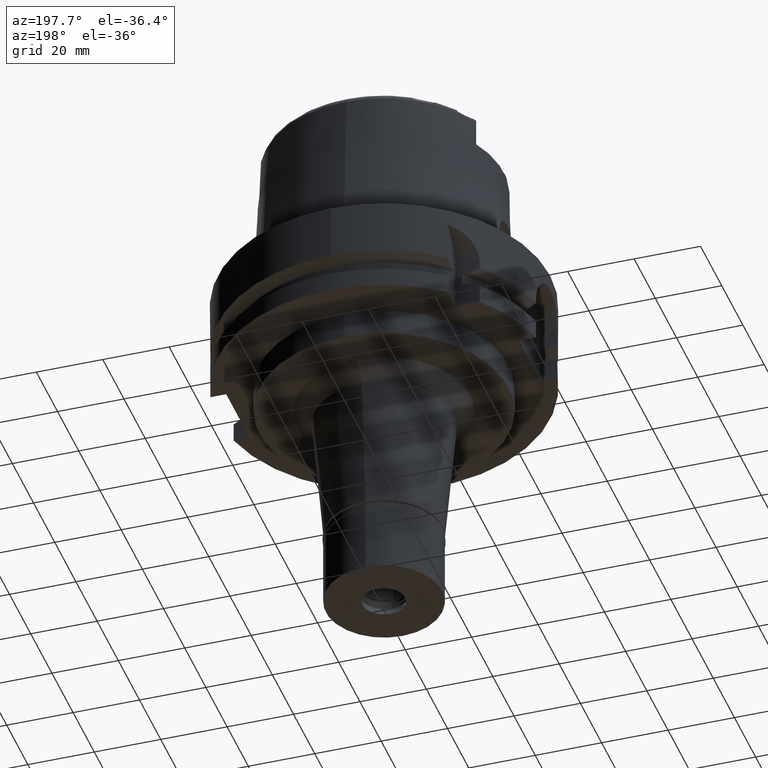
[diagram: clean part render]
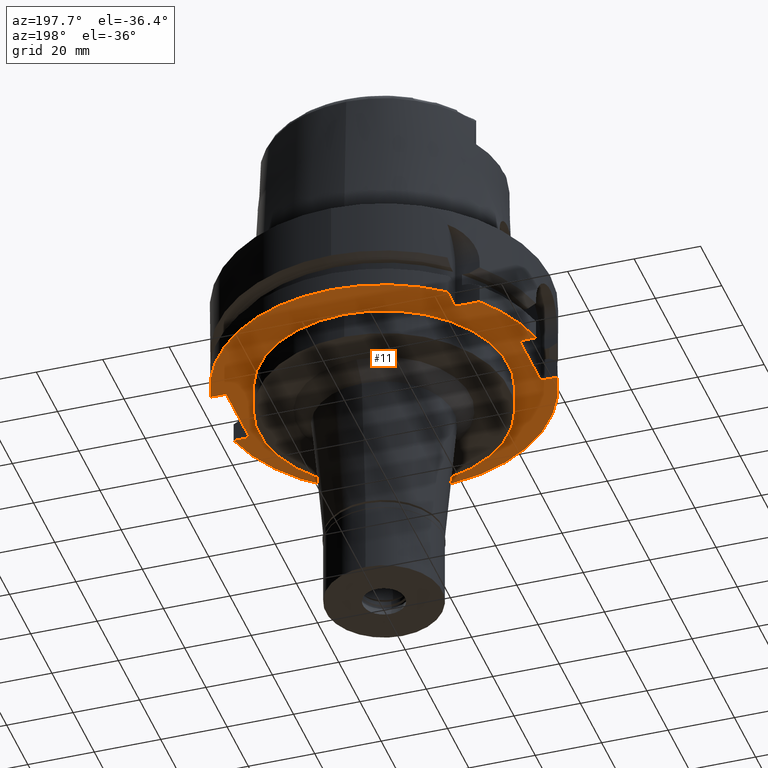
[diagram: same view with one face highlighted and labeled with its STEP entity id]
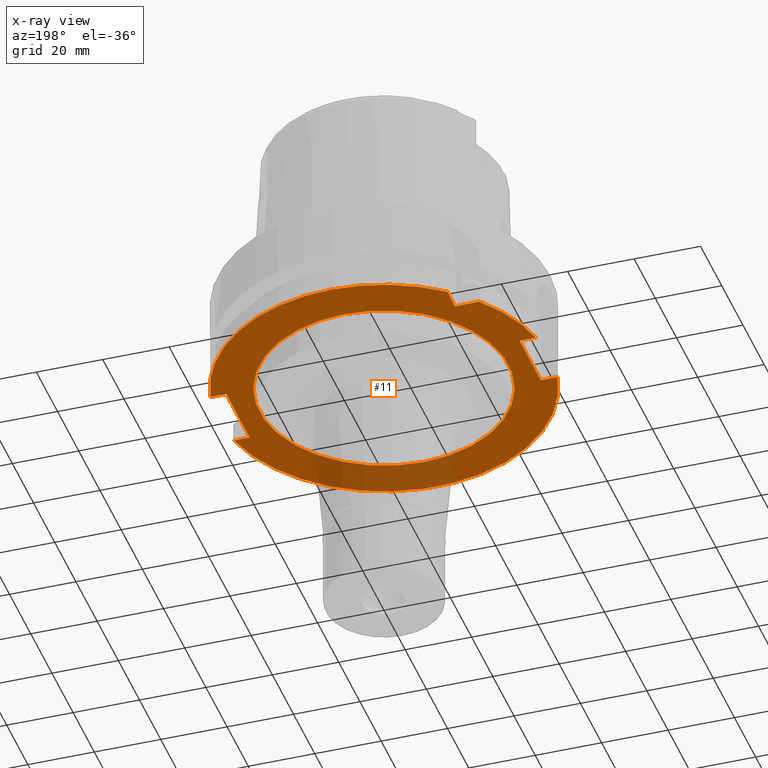
[diagram: x-ray of the same camera — body ghosted, the highlighted face saturated]
A machine part, auxiliary view. The second image highlights one B-rep face of the part: STEP entity #11.
The next image is the same camera in x-ray: the body ghosted, the highlighted face saturated — about 16% of this face is hidden behind the body in this view.
In plain terms, the highlighted planar face has unit normal (0, 0, 1).
Its self-contained STEP definition (entity closure, byte-faithful):
#11 = ADVANCED_FACE ( 'NONE', ( #967, #1387 ), #4394, .F. ) ;
#55 = EDGE_LOOP ( 'NONE', ( #5198, #1455 ) ) ;
#85 = ORIENTED_EDGE ( 'NONE', *, *, #1771, .F. ) ;
#117 = LINE ( 'NONE', #4838, #1353 ) ;
#139 = CARTESIAN_POINT ( 'NONE',  ( 0.0000000000000000000, 0.0000000000000000000, -29.00000000000000000 ) ) ;
#140 = DIRECTION ( 'NONE',  ( 0.0000000000000000000, 1.000000000000000000, 0.0000000000000000000 ) ) ;
#279 = VECTOR ( 'NONE', #284, 1000.000000000000000 ) ;
#284 = DIRECTION ( 'NONE',  ( -1.000000000000000000, -4.798503851105999980E-14, 0.0000000000000000000 ) ) ;
#345 = ORIENTED_EDGE ( 'NONE', *, *, #875, .F. ) ;
#366 = AXIS2_PLACEMENT_3D ( 'NONE', #2118, #4767, #4364 ) ;
#443 = CARTESIAN_POINT ( 'NONE',  ( 0.0000000000000000000, 37.50000000000000000, -29.00000000000000000 ) ) ;
#459 = DIRECTION ( 'NONE',  ( 0.0000000000000000000, 0.0000000000000000000, 1.000000000000000000 ) ) ;
#468 = DIRECTION ( 'NONE',  ( 0.0000000000000000000, -1.000000000000000000, 0.0000000000000000000 ) ) ;
#541 = DIRECTION ( 'NONE',  ( 0.0000000000000000000, 1.000000000000000000, 0.0000000000000000000 ) ) ;
#689 = LINE ( 'NONE', #1130, #3013 ) ;
#704 = DIRECTION ( 'NONE',  ( 0.0000000000000000000, 0.0000000000000000000, -1.000000000000000000 ) ) ;
#727 = VERTEX_POINT ( 'NONE', #5574 ) ;
#777 = DIRECTION ( 'NONE',  ( 0.0000000000000000000, -1.000000000000000000, 0.0000000000000000000 ) ) ;
#800 = LINE ( 'NONE', #2402, #1756 ) ;
#875 = EDGE_CURVE ( 'NONE', #1422, #3850, #1287, .T. ) ;
#944 = EDGE_CURVE ( 'NONE', #727, #1580, #117, .T. ) ;
#967 = FACE_OUTER_BOUND ( 'NONE', #5566, .T. ) ;
#1008 = CARTESIAN_POINT ( 'NONE',  ( -31.50000000000000000, 31.50000000000000000, -29.00000000000000000 ) ) ;
#1025 = VERTEX_POINT ( 'NONE', #1317 ) ;
#1115 = ORIENTED_EDGE ( 'NONE', *, *, #1142, .F. ) ;
#1130 = CARTESIAN_POINT ( 'NONE',  ( 44.00000000000000000, -11.00000000000000000, -29.00000000000000000 ) ) ;
#1136 = LINE ( 'NONE', #3221, #5375 ) ;
#1142 = EDGE_CURVE ( 'NONE', #2928, #1918, #4063, .T. ) ;
#1162 = CARTESIAN_POINT ( 'NONE',  ( 0.0000000000000000000, -37.50000000000000000, -29.00000000000000000 ) ) ;
#1287 = LINE ( 'NONE', #3525, #5421 ) ;
#1317 = CARTESIAN_POINT ( 'NONE',  ( -48.98979485565999425, -10.00000000000000000, -29.00000000000000000 ) ) ;
#1319 = AXIS2_PLACEMENT_3D ( 'NONE', #1800, #459, #541 ) ;
#1353 = VECTOR ( 'NONE', #140, 1000.000000000000000 ) ;
#1387 = FACE_BOUND ( 'NONE', #55, .T. ) ;
#1422 = VERTEX_POINT ( 'NONE', #2287 ) ;
#1455 = ORIENTED_EDGE ( 'NONE', *, *, #3930, .F. ) ;
#1477 = ORIENTED_EDGE ( 'NONE', *, *, #2027, .T. ) ;
#1487 = DIRECTION ( 'NONE',  ( 4.798503851105999980E-14, 1.000000000000000000, 0.0000000000000000000 ) ) ;
#1506 = VECTOR ( 'NONE', #1487, 1000.000000000000000 ) ;
#1537 = ORIENTED_EDGE ( 'NONE', *, *, #4359, .F. ) ;
#1580 = VERTEX_POINT ( 'NONE', #5238 ) ;
#1672 = EDGE_CURVE ( 'NONE', #1025, #2833, #2247, .T. ) ;
#1715 = VERTEX_POINT ( 'NONE', #443 ) ;
#1756 = VECTOR ( 'NONE', #5440, 1000.000000000000000 ) ;
#1771 = EDGE_CURVE ( 'NONE', #727, #1025, #3568, .T. ) ;
#1800 = CARTESIAN_POINT ( 'NONE',  ( 0.0000000000000000000, 0.0000000000000000000, -29.00000000000000000 ) ) ;
#1827 = CARTESIAN_POINT ( 'NONE',  ( 0.0000000000000000000, 0.0000000000000000000, -29.00000000000000000 ) ) ;
#1844 = DIRECTION ( 'NONE',  ( 0.0000000000000000000, 0.0000000000000000000, -1.000000000000000000 ) ) ;
#1902 = LINE ( 'NONE', #2693, #1506 ) ;
#1918 = VERTEX_POINT ( 'NONE', #2765 ) ;
#2027 = EDGE_CURVE ( 'NONE', #3618, #2833, #689, .T. ) ;
#2052 = ORIENTED_EDGE ( 'NONE', *, *, #3555, .F. ) ;
#2054 = CIRCLE ( 'NONE', #5490, 37.50000000000000000 ) ;
#2081 = EDGE_CURVE ( 'NONE', #1580, #4415, #800, .T. ) ;
#2110 = ORIENTED_EDGE ( 'NONE', *, *, #2081, .T. ) ;
#2118 = CARTESIAN_POINT ( 'NONE',  ( 0.0000000000000000000, 0.0000000000000000000, -29.00000000000000000 ) ) ;
#2221 = CIRCLE ( 'NONE', #4126, 37.50000000000000000 ) ;
#2247 = CIRCLE ( 'NONE', #4884, 50.00000000000000000 ) ;
#2287 = CARTESIAN_POINT ( 'NONE',  ( 44.00000000000000000, 11.00000000000000000, -29.00000000000000000 ) ) ;
#2342 = CARTESIAN_POINT ( 'NONE',  ( -44.00000000000000000, -10.00000000000000000, -29.00000000000000000 ) ) ;
#2402 = CARTESIAN_POINT ( 'NONE',  ( -44.00000000000000000, 10.00000000000000000, -29.00000000000000000 ) ) ;
#2693 = CARTESIAN_POINT ( 'NONE',  ( -31.50000000000000000, 31.50000000000000000, -29.00000000000000000 ) ) ;
#2765 = CARTESIAN_POINT ( 'NONE',  ( -38.82975663071000128, 31.50000000000000000, -29.00000000000000000 ) ) ;
#2833 = VERTEX_POINT ( 'NONE', #5139 ) ;
#2875 = VECTOR ( 'NONE', #3596, 1000.000000000000000 ) ;
#2928 = VERTEX_POINT ( 'NONE', #3578 ) ;
#3013 = VECTOR ( 'NONE', #4211, 1000.000000000000000 ) ;
#3178 = CARTESIAN_POINT ( 'NONE',  ( 48.77499359303000404, 11.00000000000000000, -29.00000000000000000 ) ) ;
#3221 = CARTESIAN_POINT ( 'NONE',  ( 44.00000000000000000, 11.00000000000000000, -29.00000000000000000 ) ) ;
#3293 = DIRECTION ( 'NONE',  ( 0.0000000000000000000, 1.000000000000000000, 0.0000000000000000000 ) ) ;
#3409 = AXIS2_PLACEMENT_3D ( 'NONE', #1827, #4871, #4477 ) ;
#3525 = CARTESIAN_POINT ( 'NONE',  ( 44.00000000000000000, 11.00000000000000000, -29.00000000000000000 ) ) ;
#3555 = EDGE_CURVE ( 'NONE', #3850, #5439, #3761, .T. ) ;
#3567 = ORIENTED_EDGE ( 'NONE', *, *, #3769, .T. ) ;
#3568 = LINE ( 'NONE', #2342, #2875 ) ;
#3578 = CARTESIAN_POINT ( 'NONE',  ( -31.50000000000000000, 31.50000000000000000, -29.00000000000000000 ) ) ;
#3596 = DIRECTION ( 'NONE',  ( -1.000000000000000000, -4.627973610177000155E-14, 0.0000000000000000000 ) ) ;
#3618 = VERTEX_POINT ( 'NONE', #3984 ) ;
#3707 = ORIENTED_EDGE ( 'NONE', *, *, #5125, .T. ) ;
#3761 = CIRCLE ( 'NONE', #1319, 50.00000000000000000 ) ;
#3769 = EDGE_CURVE ( 'NONE', #2928, #5439, #1902, .T. ) ;
#3775 = ORIENTED_EDGE ( 'NONE', *, *, #1672, .F. ) ;
#3850 = VERTEX_POINT ( 'NONE', #3178 ) ;
#3930 = EDGE_CURVE ( 'NONE', #4994, #1715, #2054, .T. ) ;
#3968 = EDGE_CURVE ( 'NONE', #1715, #4994, #2221, .T. ) ;
#3984 = CARTESIAN_POINT ( 'NONE',  ( 44.00000000000000000, -11.00000000000000000, -29.00000000000000000 ) ) ;
#4063 = LINE ( 'NONE', #1008, #279 ) ;
#4126 = AXIS2_PLACEMENT_3D ( 'NONE', #5452, #704, #3293 ) ;
#4211 = DIRECTION ( 'NONE',  ( 1.000000000000000000, 1.711257052401000108E-14, 0.0000000000000000000 ) ) ;
#4312 = CIRCLE ( 'NONE', #3409, 50.00000000000000711 ) ;
#4350 = DIRECTION ( 'NONE',  ( 1.000000000000000000, -1.785659532940000023E-14, 0.0000000000000000000 ) ) ;
#4359 = EDGE_CURVE ( 'NONE', #1918, #4415, #4312, .T. ) ;
#4364 = DIRECTION ( 'NONE',  ( 1.000000000000000000, 0.0000000000000000000, 0.0000000000000000000 ) ) ;
#4394 = PLANE ( 'NONE',  #366 ) ;
#4415 = VERTEX_POINT ( 'NONE', #5436 ) ;
#4477 = DIRECTION ( 'NONE',  ( -0.7765951326141738997, 0.6299999999999789102, 0.0000000000000000000 ) ) ;
#4767 = DIRECTION ( 'NONE',  ( 0.0000000000000000000, 0.0000000000000000000, 1.000000000000000000 ) ) ;
#4771 = DIRECTION ( 'NONE',  ( 0.0000000000000000000, 0.0000000000000000000, 1.000000000000000000 ) ) ;
#4838 = CARTESIAN_POINT ( 'NONE',  ( -44.00000000000000000, -10.00000000000000000, -29.00000000000000000 ) ) ;
#4871 = DIRECTION ( 'NONE',  ( 0.0000000000000000000, 0.0000000000000000000, 1.000000000000000000 ) ) ;
#4884 = AXIS2_PLACEMENT_3D ( 'NONE', #5156, #4771, #468 ) ;
#4994 = VERTEX_POINT ( 'NONE', #1162 ) ;
#5125 = EDGE_CURVE ( 'NONE', #1422, #3618, #1136, .T. ) ;
#5139 = CARTESIAN_POINT ( 'NONE',  ( 48.77499359303000404, -11.00000000000000000, -29.00000000000000000 ) ) ;
#5156 = CARTESIAN_POINT ( 'NONE',  ( 0.0000000000000000000, 0.0000000000000000000, -29.00000000000000000 ) ) ;
#5198 = ORIENTED_EDGE ( 'NONE', *, *, #3968, .F. ) ;
#5238 = CARTESIAN_POINT ( 'NONE',  ( -44.00000000000000000, 10.00000000000000000, -29.00000000000000000 ) ) ;
#5311 = DIRECTION ( 'NONE',  ( 0.0000000000000000000, -1.000000000000000000, 0.0000000000000000000 ) ) ;
#5351 = ORIENTED_EDGE ( 'NONE', *, *, #944, .T. ) ;
#5375 = VECTOR ( 'NONE', #777, 1000.000000000000000 ) ;
#5386 = CARTESIAN_POINT ( 'NONE',  ( -31.50000000000000000, 38.82975663071000128, -29.00000000000000000 ) ) ;
#5421 = VECTOR ( 'NONE', #4350, 1000.000000000000000 ) ;
#5436 = CARTESIAN_POINT ( 'NONE',  ( -48.98979485565999425, 10.00000000000000000, -29.00000000000000000 ) ) ;
#5439 = VERTEX_POINT ( 'NONE', #5386 ) ;
#5440 = DIRECTION ( 'NONE',  ( -1.000000000000000000, 4.627973610177000155E-14, 0.0000000000000000000 ) ) ;
#5452 = CARTESIAN_POINT ( 'NONE',  ( 0.0000000000000000000, 0.0000000000000000000, -29.00000000000000000 ) ) ;
#5490 = AXIS2_PLACEMENT_3D ( 'NONE', #139, #1844, #5311 ) ;
#5566 = EDGE_LOOP ( 'NONE', ( #2052, #345, #3707, #1477, #3775, #85, #5351, #2110, #1537, #1115, #3567 ) ) ;
#5574 = CARTESIAN_POINT ( 'NONE',  ( -44.00000000000000000, -10.00000000000000000, -29.00000000000000000 ) ) ;